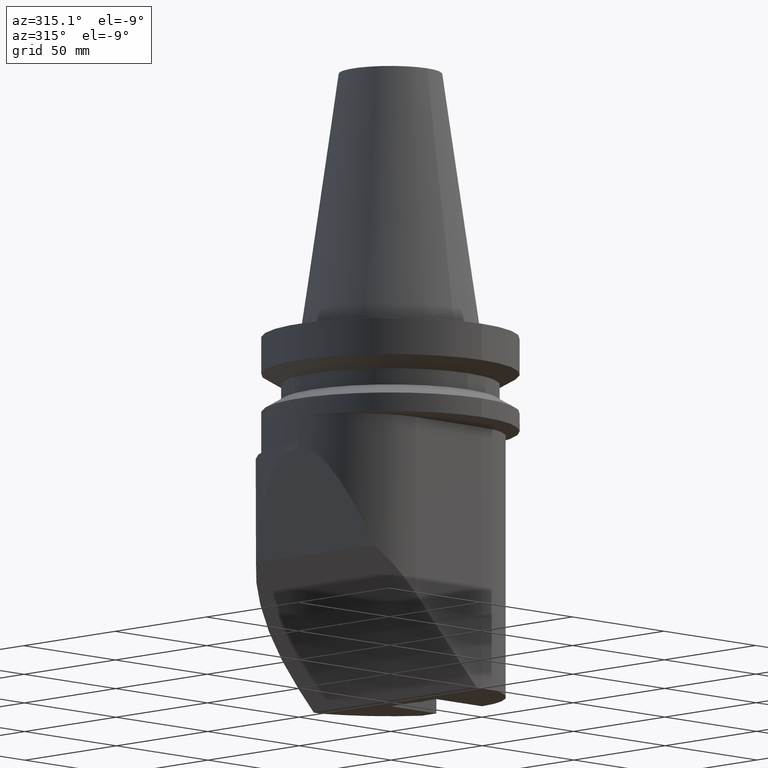
[diagram: clean part render]
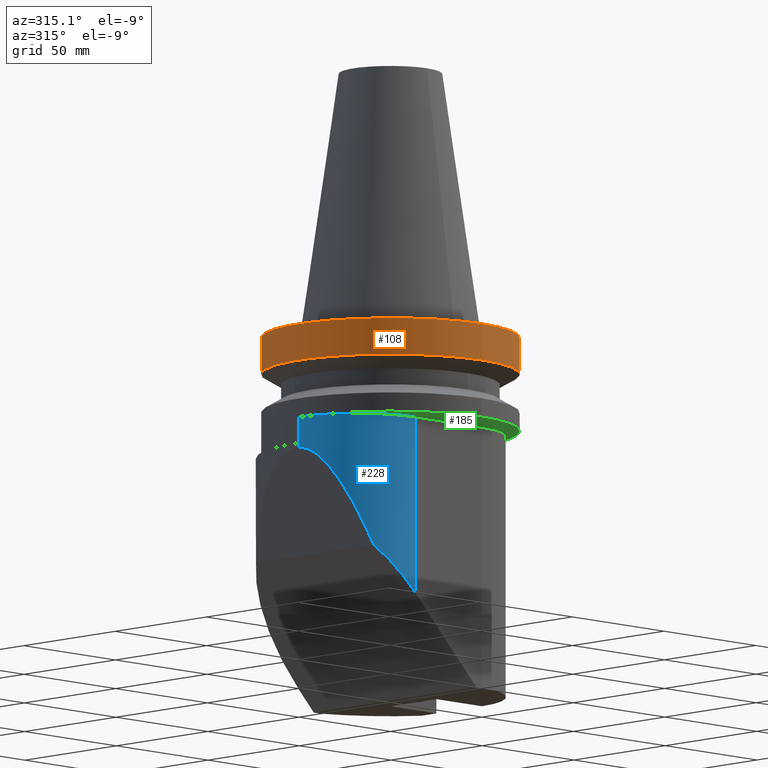
[diagram: same view with three faces highlighted in distinct colors, each labeled with its STEP entity id]
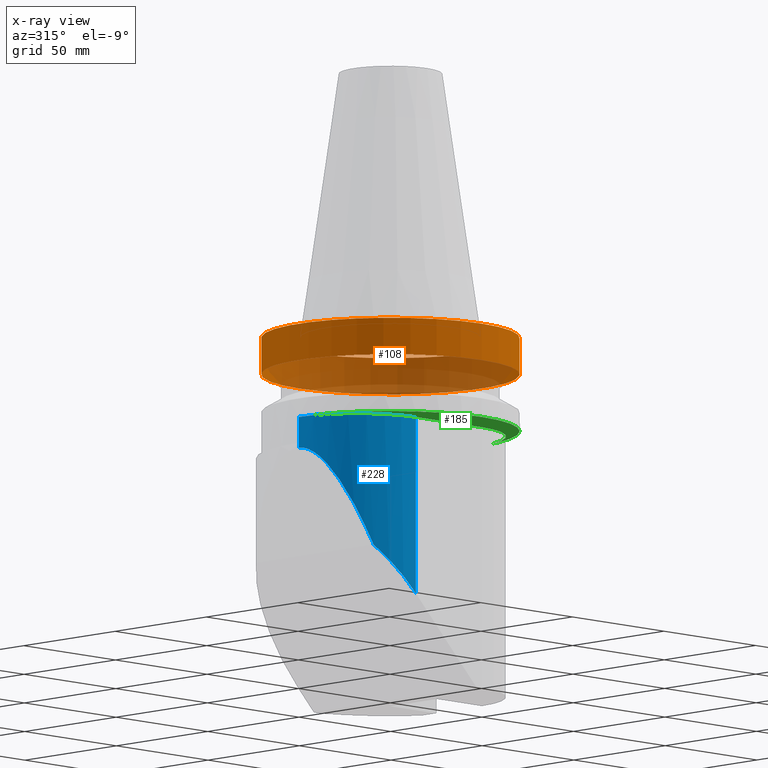
[diagram: x-ray of the same camera — body ghosted, the three highlighted faces saturated]
A machine part, auxiliary view with three faces highlighted in distinct colors.
The next image is the same camera in x-ray (body ghosted, the three faces saturated) — at least one of them is partly hidden behind the body in this view.
Their STEP definitions:

[orange] entity #108 — the highlighted cylindrical surface (bore or boss wall) has radius 50 mm, axis along (0, 0, -1).
#108=ADVANCED_FACE('Unnamed[1]',(#307,#308),#309,.T.);
#133=EDGE_CURVE('Unnamed[1]',#349,#349,#350,.T.);
#225=EDGE_CURVE('Unnamed[1]',#472,#472,#473,.T.);
#307=FACE_BOUND('',#565,.T.);
#308=FACE_BOUND('',#566,.T.);
#309=CYLINDRICAL_SURFACE('',#567,50.0000000000019);
#349=VERTEX_POINT('',#624);
#350=CIRCLE('',#625,50.0000000000015);
#472=VERTEX_POINT('',#797);
#473=CIRCLE('',#798,50.0000000000022);
#565=EDGE_LOOP('',(#909));
#566=EDGE_LOOP('',(#910));
#567=AXIS2_PLACEMENT_3D('',#911,#912,#913);
#624=CARTESIAN_POINT('',(9.613477373308E-016,-50.0000000000015,-15.7000000000021));
#625=AXIS2_PLACEMENT_3D('',#942,#943,#944);
#797=CARTESIAN_POINT('',(9.18485099361419E-017,-50.0000000000022,-1.50000000000147));
#798=AXIS2_PLACEMENT_3D('',#1111,#1112,#1113);
#909=ORIENTED_EDGE('',*,*,#225,.F.);
#910=ORIENTED_EDGE('',*,*,#133,.T.);
#911=CARTESIAN_POINT('',(5.26598123633468E-016,2.14937218299823E-014,-8.60000000000173));
#912=DIRECTION('',(6.12323399573677E-017,1.07157455523681E-015,-1.0));
#913=DIRECTION('',(7.04421701866971E-032,-1.0,-1.07157455523681E-015));
#942=CARTESIAN_POINT('',(9.61347737330797E-016,2.91019011721642E-014,-15.700000000002));
#943=DIRECTION('',(-6.12323399573676E-017,-1.07157455523682E-015,1.0));
#944=DIRECTION('',(7.04421701866976E-032,-1.0,-1.07157455523682E-015));
#1111=CARTESIAN_POINT('',(9.18485099361385E-017,1.38855424878005E-014,-1.50000000000142));
#1112=DIRECTION('',(-6.12323399573677E-017,-1.07157455523687E-015,1.0));
#1113=DIRECTION('',(7.04421701866965E-032,-1.0,-1.07157455523687E-015));

[blue] entity #228 — the highlighted cylindrical surface (partial cylindrical patch) has radius 32 mm, axis along (0, 0, -1).
#105=EDGE_CURVE('Unnamed[1]',#302,#303,#304,.T.);
#116=EDGE_CURVE('Unnamed[1]',#322,#303,#323,.T.);
#127=EDGE_CURVE('Unnamed[1]',#340,#302,#341,.T.);
#195=EDGE_CURVE('Unnamed[1]',#312,#411,#433,.T.);
#219=EDGE_CURVE('Unnamed[1]',#411,#322,#466,.T.);
#228=ADVANCED_FACE('Unnamed[1]',(#476),#477,.T.);
#266=EDGE_CURVE('Unnamed[1]',#312,#340,#525,.T.);
#302=VERTEX_POINT('',#558);
#303=VERTEX_POINT('',#559);
#304=LINE('',#560,#561);
#312=VERTEX_POINT('',#571);
#322=VERTEX_POINT('',#586);
#323=CIRCLE('',#587,32.0);
#340=VERTEX_POINT('',#611);
#341=ELLIPSE('',#612,45.2548339959391,32.0);
#411=VERTEX_POINT('',#712);
#433=LINE('',#741,#742);
#466=LINE('',#786,#787);
#476=FACE_OUTER_BOUND('',#802,.T.);
#477=CYLINDRICAL_SURFACE('',#803,32.0);
#525=ELLIPSE('',#876,93.5617408052193,32.0);
#558=CARTESIAN_POINT('',(-17.9999999999983,-31.9999999999922,-107.000000000001));
#559=CARTESIAN_POINT('',(-17.9999999999983,-31.9999999999922,-38.0000000000021));
#560=CARTESIAN_POINT('',(-17.9999999999983,-31.9999999999922,-266.000000000001));
#561=VECTOR('',#907,1.0);
#571=CARTESIAN_POINT('',(-49.9999999999965,7.79815138142592E-012,-50.0000000000008));
#586=CARTESIAN_POINT('',(-49.9999999999973,9.85431223564382E-012,-38.000000000002));
#587=AXIS2_PLACEMENT_3D('',#919,#920,#921);
#611=CARTESIAN_POINT('',(-35.693663493626,-26.6633507304275,-89.3063365063732));
#612=AXIS2_PLACEMENT_3D('',#935,#936,#937);
#712=CARTESIAN_POINT('',(-49.9999999999973,9.85553688244297E-012,-48.0000000000074));
#741=CARTESIAN_POINT('',(-49.9999999999973,9.88223418266438E-012,-266.000000000001));
#742=VECTOR('',#1072,1.0);
#786=CARTESIAN_POINT('',(-50.0000000000125,-4.63260901682357E-011,-266.000000000001));
#787=VECTOR('',#1106,1.0);
#802=EDGE_LOOP('',(#1115,#1116,#1117,#1118,#1119,#1120));
#803=AXIS2_PLACEMENT_3D('',#1121,#1122,#1123);
#876=AXIS2_PLACEMENT_3D('',#1172,#1173,#1174);
#907=DIRECTION('',(-6.12323399573677E-017,-1.22464679914735E-016,1.0));
#919=CARTESIAN_POINT('',(-17.9999999999966,7.79668180526694E-012,-38.000000000002));
#920=DIRECTION('',(-1.22464679914735E-016,-1.22464679914735E-016,1.0));
#921=DIRECTION('',(-1.0,1.22464679914735E-016,-1.22464679914735E-016));
#935=CARTESIAN_POINT('',(-17.9999999999966,7.80513186818106E-012,-107.000000000003));
#936=DIRECTION('',(0.707106781186548,-8.65956056235493E-017,0.707106781186547));
#937=DIRECTION('',(-0.707106781186547,-1.08002480335013E-031,0.707106781186548));
#1072=DIRECTION('',(-6.12323399573677E-017,-1.22464679914735E-016,1.0));
#1106=DIRECTION('',(-6.12323399573677E-017,-1.22464679914735E-016,1.0));
#1115=ORIENTED_EDGE('',*,*,#127,.T.);
#1116=ORIENTED_EDGE('',*,*,#105,.T.);
#1117=ORIENTED_EDGE('',*,*,#116,.F.);
#1118=ORIENTED_EDGE('',*,*,#219,.F.);
#1119=ORIENTED_EDGE('',*,*,#195,.F.);
#1120=ORIENTED_EDGE('',*,*,#266,.T.);
#1121=CARTESIAN_POINT('',(-17.9999999999966,7.8246037522875E-012,-266.000000000001));
#1122=DIRECTION('',(6.12323399573676E-017,1.22464679914735E-016,-1.0));
#1123=DIRECTION('',(-1.0,1.22464679914735E-016,-6.12323399573676E-017));
#1172=CARTESIAN_POINT('',(-17.9999999999966,7.80891838759381E-012,-137.919277422549));
#1173=DIRECTION('',(0.939692620785909,-4.18853873767697E-017,0.342020143325667));
#1174=DIRECTION('',(-0.342020143325667,-7.31937686460154E-017,0.939692620785909));

[green] entity #185 — the highlighted planar face has unit normal (0, -0, 1).
#114=EDGE_CURVE('Unnamed[1]',#303,#319,#320,.T.);
#116=EDGE_CURVE('Unnamed[1]',#322,#303,#323,.T.);
#120=EDGE_CURVE('Unnamed[1]',#319,#329,#330,.T.);
#154=EDGE_CURVE('Unnamed[1]',#322,#329,#379,.T.);
#185=ADVANCED_FACE('Unnamed[1]',(#419),#420,.F.);
#303=VERTEX_POINT('',#559);
#319=VERTEX_POINT('',#581);
#320=LINE('',#582,#583);
#322=VERTEX_POINT('',#586);
#323=CIRCLE('',#587,32.0);
#329=VERTEX_POINT('',#596);
#330=CIRCLE('',#597,32.0);
#379=CIRCLE('',#667,49.9999999999992);
#419=FACE_OUTER_BOUND('',#722,.T.);
#420=PLANE('',#723);
#559=CARTESIAN_POINT('',(-17.9999999999983,-31.9999999999922,-38.0000000000021));
#581=CARTESIAN_POINT('',(18.0000000000017,-31.9999999999942,-38.0000000000021));
#582=CARTESIAN_POINT('',(-17.9999999999983,-31.9999999999919,-38.0000000000021));
#583=VECTOR('',#918,1.0);
#586=CARTESIAN_POINT('',(-49.9999999999973,9.85431223564382E-012,-38.000000000002));
#587=AXIS2_PLACEMENT_3D('',#919,#920,#921);
#596=CARTESIAN_POINT('',(50.0000000000038,4.14602722786397E-012,-38.000000000002));
#597=AXIS2_PLACEMENT_3D('',#923,#924,#925);
#667=AXIS2_PLACEMENT_3D('',#979,#980,#981);
#722=EDGE_LOOP('',(#1048,#1049,#1050,#1051));
#723=AXIS2_PLACEMENT_3D('',#1052,#1053,#1054);
#918=DIRECTION('',(1.0,-6.62186355131981E-014,6.12323399573596E-017));
#919=CARTESIAN_POINT('',(-17.9999999999966,7.79668180526694E-012,-38.000000000002));
#920=DIRECTION('',(-1.22464679914735E-016,-1.22464679914735E-016,1.0));
#921=DIRECTION('',(-1.0,1.22464679914735E-016,-1.22464679914735E-016));
#923=CARTESIAN_POINT('',(18.0000000000038,5.86554064840341E-012,-38.000000000002));
#924=DIRECTION('',(-1.22464679914735E-016,-1.22464679914735E-016,1.0));
#925=DIRECTION('',(-1.0,1.22464679914735E-016,-1.22464679914735E-016));
#979=CARTESIAN_POINT('',(2.32682891838009E-015,5.29980137539456E-014,-38.000000000002));
#980=DIRECTION('',(-6.12323399573677E-017,-1.22464679914738E-016,1.0));
#981=DIRECTION('',(1.23259516440785E-032,-1.0,-1.22464679914738E-016));
#1048=ORIENTED_EDGE('',*,*,#154,.F.);
#1049=ORIENTED_EDGE('',*,*,#116,.T.);
#1050=ORIENTED_EDGE('',*,*,#114,.T.);
#1051=ORIENTED_EDGE('',*,*,#120,.T.);
#1052=CARTESIAN_POINT('',(-11.8172598419502,-65.6546884578564,-38.0000000000021));
#1053=DIRECTION('',(7.49879891330927E-033,-1.22464679914735E-016,1.0));
#1054=DIRECTION('',(1.0,6.12323399573677E-017,0.0));